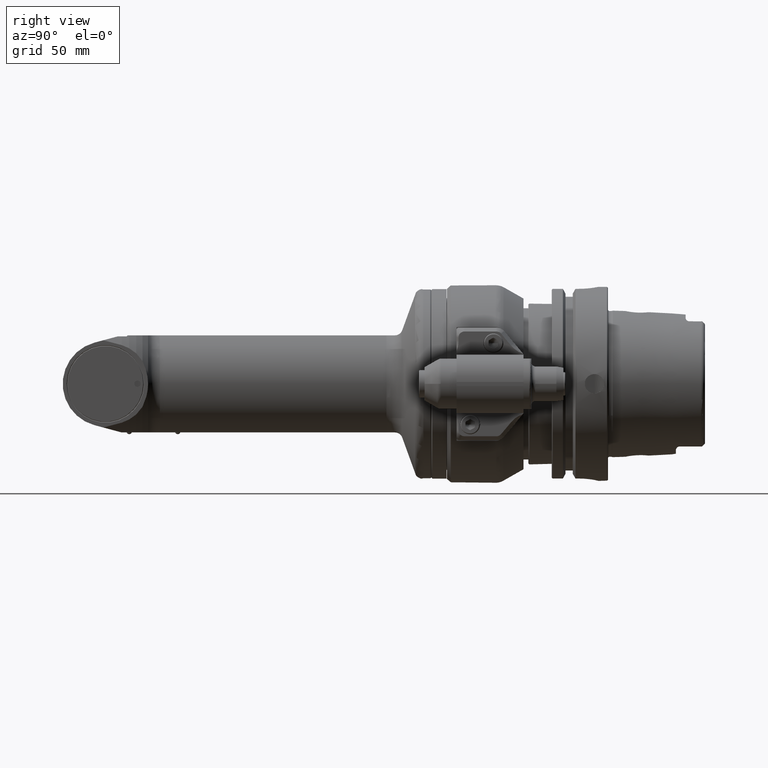
[diagram: clean part render]
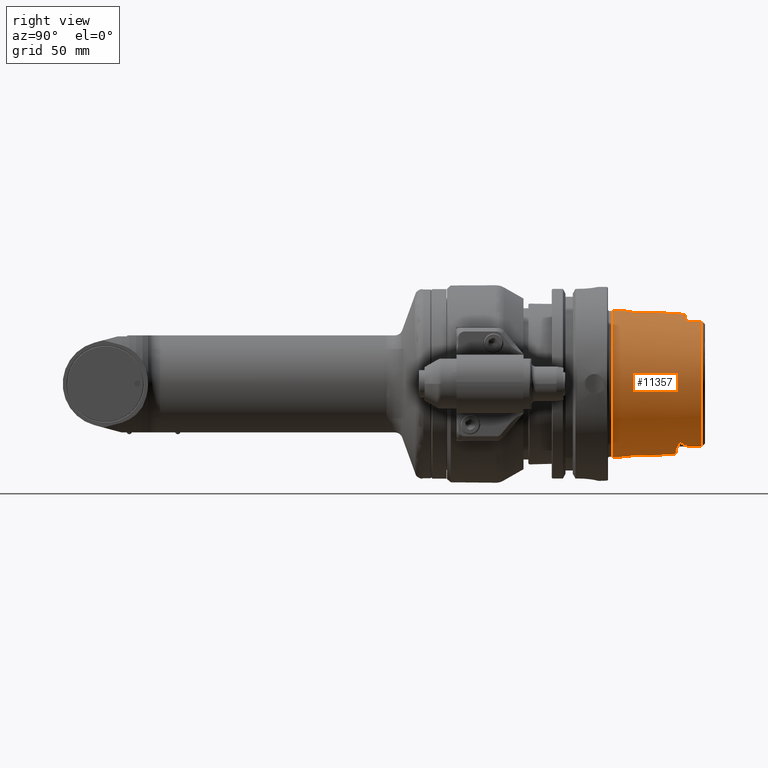
[diagram: same view with one face highlighted and labeled with its STEP entity id]
A machine part, right view. The second image highlights one B-rep face of the part: STEP entity #11357.
In plain terms, the highlighted conical surface has half-angle 2.868 deg.
Its self-contained STEP definition (entity closure, byte-faithful):
#150=B_SPLINE_CURVE_WITH_KNOTS('',3,(#60671,#60672,#60673,#60674,#60675,
#60676,#60677,#60678,#60679,#60680,#60681,#60682,#60683,#60684,#60685,#60686,
#60687,#60688),.UNSPECIFIED.,.F.,.F.,(4,2,2,2,2,2,2,2,4),(1.95351747742074,
1.96415168134067,1.9747858852606,1.99605429310045,2.07500752198644,2.15396075087244,
2.37309502710521,2.59222930333799,2.83524321414784),.UNSPECIFIED.);
#151=B_SPLINE_CURVE_WITH_KNOTS('',3,(#60694,#60695,#60696,#60697,#60698,
#60699,#60700,#60701,#60702,#60703,#60704,#60705,#60706,#60707,#60708,#60709,
#60710,#60711,#60712),.UNSPECIFIED.,.F.,.F.,(4,2,2,2,2,2,3,2,4),(0.880850159135021,
1.06197193937717,1.12429506029204,1.14773343290938,1.16113788293459,1.16784010794719,
1.1745423329598,1.1812615850908,1.18523491439442),.UNSPECIFIED.);
#152=B_SPLINE_CURVE_WITH_KNOTS('',3,(#60714,#60715,#60716,#60717,#60718,
#60719,#60720,#60721,#60722,#60723,#60724,#60725),.UNSPECIFIED.,.F.,.F.,
(4,2,2,2,2,4),(-2.21811633364772,-2.19053511535296,-2.02523452835063,-1.9375169475588,
-1.89629131750475,-1.88277978154764),.UNSPECIFIED.);
#153=B_SPLINE_CURVE_WITH_KNOTS('',3,(#60729,#60730,#60731,#60732,#60733,
#60734,#60735,#60736,#60737,#60738),.UNSPECIFIED.,.F.,.F.,(4,2,2,2,4),(-0.968342178380193,
-0.916829721728276,-0.81436746422335,-0.475336799953219,-0.355883563659341),
 .UNSPECIFIED.);
#154=B_SPLINE_CURVE_WITH_KNOTS('',3,(#60740,#60741,#60742,#60743,#60744,
#60745,#60746,#60747,#60748,#60749,#60750,#60751,#60752,#60753,#60754,#60755,
#60756,#60757),.UNSPECIFIED.,.F.,.F.,(4,2,2,2,2,2,2,2,4),(0.576465429523074,
0.580438758827661,0.587158010958199,0.593860235970344,0.60056246098249,
0.613966911006781,0.63740528362252,0.699728404533146,0.880850184762865),
 .UNSPECIFIED.);
#155=B_SPLINE_CURVE_WITH_KNOTS('',3,(#60763,#60764,#60765,#60766,#60767,
#60768,#60769,#60770,#60771,#60772,#60773,#60774,#60775,#60776,#60777,#60778,
#60779,#60780),.UNSPECIFIED.,.F.,.F.,(4,2,2,2,2,2,2,2,4),(1.0717917443354,
1.31480565516204,1.53393993138363,1.75307420760523,1.83202743648706,1.91098066536889,
1.93224907320764,1.94288327712701,1.95351748104638),.UNSPECIFIED.);
#156=B_SPLINE_CURVE_WITH_KNOTS('',3,(#60784,#60785,#60786,#60787,#60788,
#60789,#60790,#60791),.UNSPECIFIED.,.F.,.F.,(4,2,2,4),(2.25015551751675,
2.37309502814378,2.59222930392852,2.83524321428847),.UNSPECIFIED.);
#157=B_SPLINE_CURVE_WITH_KNOTS('',3,(#60793,#60794,#60795,#60796,#60797,
#60798,#60799,#60800,#60801,#60802,#60803,#60804,#60805,#60806),
 .UNSPECIFIED.,.F.,.F.,(4,2,2,2,2,2,4),(0.711766951876582,0.73217229522712,
0.759580173348406,0.791109244943153,0.847374258154563,0.994679561113807,
1.15970822158042),.UNSPECIFIED.);
#158=B_SPLINE_CURVE_WITH_KNOTS('',3,(#60810,#60811,#60812,#60813,#60814,
#60815,#60816,#60817,#60818,#60819,#60820,#60821,#60822,#60823),
 .UNSPECIFIED.,.F.,.F.,(4,2,2,2,2,2,4),(-0.929951198099741,-0.898553991922293,
-0.853770881530642,-0.802983637328384,-0.726748246761294,-0.48788984865174,
-0.375270817784569),.UNSPECIFIED.);
#159=B_SPLINE_CURVE_WITH_KNOTS('',3,(#60825,#60826,#60827,#60828,#60829,
#60830,#60831,#60832),.UNSPECIFIED.,.F.,.F.,(4,2,2,4),(1.07179174434778,
1.31480565470068,1.53393993048412,1.65687944114178),.UNSPECIFIED.);
#160=B_SPLINE_CURVE_WITH_KNOTS('',3,(#60835,#60836,#60837,#60838,#60839,
#60840,#60841,#60842,#60843,#60844,#60845,#60846,#60847,#60848,#60849,#60850,
#60851,#60852,#60853,#60854,#60855,#60856,#60857,#60858,#60859,#60860,#60861,
#60862,#60863,#60864,#60865,#60866,#60867,#60868),.UNSPECIFIED.,.T.,.F.,
(4,2,2,2,2,2,2,2,2,2,2,2,2,2,2,2,4),(-3.62526048863598,-3.4004530432976,
-3.17564559795922,-2.95051015909361,-2.72537472022801,-2.5002392813624,
-2.27510384249679,-2.05029639715841,-1.82548895182003,-1.59713724610656,
-1.36878554039308,-1.14076500815155,-0.912744475910015,-0.684723943668482,
-0.456703411426949,-0.228351705713474,0.),.UNSPECIFIED.);
#161=B_SPLINE_CURVE_WITH_KNOTS('',3,(#60871,#60872,#60873,#60874,#60875,
#60876,#60877,#60878,#60879,#60880,#60881,#60882,#60883,#60884,#60885,#60886,
#60887,#60888),.UNSPECIFIED.,.F.,.F.,(4,2,2,2,2,2,2,2,4),(-3.62042001085126,
-3.3969087829225,-3.16855707720903,-2.9405365449675,-2.71251601272596,-2.48449548048443,
-2.2564749482429,-2.02812324252942,-1.80461203294813),.UNSPECIFIED.);
#162=B_SPLINE_CURVE_WITH_KNOTS('',3,(#60889,#60890,#60891,#60892,#60893,
#60894,#60895,#60896,#60897,#60898,#60899,#60900,#60901,#60902,#60903,#60904,
#60905,#60906,#60907,#60908,#60909,#60910,#60911),.UNSPECIFIED.,.F.,.F.,
(4,2,2,2,2,2,2,2,2,3,4),(-1.80461203294813,-1.79977153681595,-1.57496409147757,
-1.35015664613919,-1.12502120727358,-0.899885768407974,-0.674750329542366,
-0.449614890676758,-0.224807445338379,0.,0.00484047778471908),
 .UNSPECIFIED.);
#345=(
BOUNDED_CURVE()
B_SPLINE_CURVE(2,(#60690,#60691,#60692),.UNSPECIFIED.,.F.,.F.)
B_SPLINE_CURVE_WITH_KNOTS((3,3),(2.97141344392928,3.96265835988855),
 .UNSPECIFIED.)
CURVE()
GEOMETRIC_REPRESENTATION_ITEM()
RATIONAL_B_SPLINE_CURVE((1.02464110441185,1.02628589834782,1.02628589827356))
REPRESENTATION_ITEM('')
);
#346=(
BOUNDED_CURVE()
B_SPLINE_CURVE(2,(#60759,#60760,#60761),.UNSPECIFIED.,.F.,.F.)
B_SPLINE_CURVE_WITH_KNOTS((3,3),(3.9626582701818,4.95390318622074),
 .UNSPECIFIED.)
CURVE()
GEOMETRIC_REPRESENTATION_ITEM()
RATIONAL_B_SPLINE_CURVE((1.02628589827313,1.02628589834766,1.02464110441169))
REPRESENTATION_ITEM('')
);
#482=CONICAL_SURFACE('',#12432,36.74017294717,0.0500570901447486);
#762=FACE_BOUND('',#2470,.T.);
#763=FACE_BOUND('',#2471,.T.);
#1174=CIRCLE('',#12430,37.88261919706);
#1175=CIRCLE('',#12431,37.88261919706);
#1176=CIRCLE('',#12433,35.59772669727);
#1177=CIRCLE('',#12434,36.25402645881);
#1178=CIRCLE('',#12435,35.59772669727);
#1179=CIRCLE('',#12436,36.00353175058);
#1180=CIRCLE('',#12437,35.59772669727);
#1764=FACE_OUTER_BOUND('',#2469,.T.);
#2469=EDGE_LOOP('',(#9961,#9962,#9963,#9964,#9965,#9966,#9967,#9968,#9969,
#9970,#9971,#9972,#9973,#9974,#9975,#9976,#9977,#9978,#9979,#9980,#9981));
#2470=EDGE_LOOP('',(#9982));
#2471=EDGE_LOOP('',(#9983,#9984));
#3353=LINE('',#60667,#4235);
#4235=VECTOR('',#15189,36.74017294717);
#5368=VERTEX_POINT('',#60660);
#5369=VERTEX_POINT('',#60661);
#5370=VERTEX_POINT('',#60666);
#5371=VERTEX_POINT('',#60668);
#5372=VERTEX_POINT('',#60670);
#5373=VERTEX_POINT('',#60689);
#5374=VERTEX_POINT('',#60693);
#5375=VERTEX_POINT('',#60713);
#5376=VERTEX_POINT('',#60726);
#5377=VERTEX_POINT('',#60728);
#5378=VERTEX_POINT('',#60739);
#5379=VERTEX_POINT('',#60758);
#5380=VERTEX_POINT('',#60762);
#5381=VERTEX_POINT('',#60781);
#5382=VERTEX_POINT('',#60783);
#5383=VERTEX_POINT('',#60792);
#5384=VERTEX_POINT('',#60807);
#5385=VERTEX_POINT('',#60809);
#5386=VERTEX_POINT('',#60824);
#5387=VERTEX_POINT('',#60834);
#5388=VERTEX_POINT('',#60869);
#5389=VERTEX_POINT('',#60870);
#6937=EDGE_CURVE('',#5368,#5369,#1174,.T.);
#6939=EDGE_CURVE('',#5369,#5368,#1175,.T.);
#6940=EDGE_CURVE('',#5368,#5370,#3353,.T.);
#6941=EDGE_CURVE('',#5371,#5370,#1176,.T.);
#6942=EDGE_CURVE('',#5372,#5371,#150,.T.);
#6943=EDGE_CURVE('',#5373,#5372,#345,.T.);
#6944=EDGE_CURVE('',#5374,#5373,#151,.T.);
#6945=EDGE_CURVE('',#5375,#5374,#152,.T.);
#6946=EDGE_CURVE('',#5376,#5375,#1177,.T.);
#6947=EDGE_CURVE('',#5377,#5376,#153,.T.);
#6948=EDGE_CURVE('',#5378,#5377,#154,.T.);
#6949=EDGE_CURVE('',#5379,#5378,#346,.T.);
#6950=EDGE_CURVE('',#5380,#5379,#155,.T.);
#6951=EDGE_CURVE('',#5381,#5380,#1178,.T.);
#6952=EDGE_CURVE('',#5382,#5381,#156,.T.);
#6953=EDGE_CURVE('',#5382,#5383,#157,.T.);
#6954=EDGE_CURVE('',#5384,#5383,#1179,.T.);
#6955=EDGE_CURVE('',#5385,#5384,#158,.T.);
#6956=EDGE_CURVE('',#5386,#5385,#159,.T.);
#6957=EDGE_CURVE('',#5370,#5386,#1180,.T.);
#6958=EDGE_CURVE('',#5387,#5387,#160,.T.);
#6959=EDGE_CURVE('',#5388,#5389,#161,.T.);
#6960=EDGE_CURVE('',#5389,#5388,#162,.T.);
#9961=ORIENTED_EDGE('',*,*,#6937,.F.);
#9962=ORIENTED_EDGE('',*,*,#6940,.T.);
#9963=ORIENTED_EDGE('',*,*,#6941,.F.);
#9964=ORIENTED_EDGE('',*,*,#6942,.F.);
#9965=ORIENTED_EDGE('',*,*,#6943,.F.);
#9966=ORIENTED_EDGE('',*,*,#6944,.F.);
#9967=ORIENTED_EDGE('',*,*,#6945,.F.);
#9968=ORIENTED_EDGE('',*,*,#6946,.F.);
#9969=ORIENTED_EDGE('',*,*,#6947,.F.);
#9970=ORIENTED_EDGE('',*,*,#6948,.F.);
#9971=ORIENTED_EDGE('',*,*,#6949,.F.);
#9972=ORIENTED_EDGE('',*,*,#6950,.F.);
#9973=ORIENTED_EDGE('',*,*,#6951,.F.);
#9974=ORIENTED_EDGE('',*,*,#6952,.F.);
#9975=ORIENTED_EDGE('',*,*,#6953,.T.);
#9976=ORIENTED_EDGE('',*,*,#6954,.F.);
#9977=ORIENTED_EDGE('',*,*,#6955,.F.);
#9978=ORIENTED_EDGE('',*,*,#6956,.F.);
#9979=ORIENTED_EDGE('',*,*,#6957,.F.);
#9980=ORIENTED_EDGE('',*,*,#6940,.F.);
#9981=ORIENTED_EDGE('',*,*,#6939,.F.);
#9982=ORIENTED_EDGE('',*,*,#6958,.T.);
#9983=ORIENTED_EDGE('',*,*,#6959,.T.);
#9984=ORIENTED_EDGE('',*,*,#6960,.T.);
#11357=ADVANCED_FACE('',(#1764,#762,#763),#482,.T.);
#12430=AXIS2_PLACEMENT_3D('',#60662,#15182,#15183);
#12431=AXIS2_PLACEMENT_3D('',#60664,#15185,#15186);
#12432=AXIS2_PLACEMENT_3D('',#60665,#15187,#15188);
#12433=AXIS2_PLACEMENT_3D('',#60669,#15190,#15191);
#12434=AXIS2_PLACEMENT_3D('',#60727,#15192,#15193);
#12435=AXIS2_PLACEMENT_3D('',#60782,#15194,#15195);
#12436=AXIS2_PLACEMENT_3D('',#60808,#15196,#15197);
#12437=AXIS2_PLACEMENT_3D('',#60833,#15198,#15199);
#15182=DIRECTION('center_axis',(0.,-1.,1.2270676010003E-16));
#15183=DIRECTION('ref_axis',(-0.901999999999984,5.2976929516558E-17,0.431736030463093));
#15185=DIRECTION('center_axis',(0.,-1.,1.2270676010003E-16));
#15186=DIRECTION('ref_axis',(-0.901999999999984,5.2976929516558E-17,0.431736030463093));
#15187=DIRECTION('center_axis',(0.,-1.,1.2270676010003E-16));
#15188=DIRECTION('ref_axis',(0.901999999999984,-5.29769295165608E-17,-0.431736030463092));
#15189=DIRECTION('',(0.045132641563491,0.998747405449354,-0.0216024251806382));
#15190=DIRECTION('center_axis',(0.,1.,-1.2270676010003E-16));
#15191=DIRECTION('ref_axis',(-0.423589941730021,-1.11154415691394E-16,-0.905854050752745));
#15192=DIRECTION('center_axis',(0.,1.,-1.2270676010003E-16));
#15193=DIRECTION('ref_axis',(0.352841176761012,-1.14814657441685E-16,-0.935683228438933));
#15194=DIRECTION('center_axis',(0.,1.,-1.2270676010003E-16));
#15195=DIRECTION('ref_axis',(0.423589941729375,1.11154415691451E-16,0.905854050753047));
#15196=DIRECTION('center_axis',(0.,1.,-1.2270676010003E-16));
#15197=DIRECTION('ref_axis',(-0.345044748677395,1.15170876028783E-16,0.938586235468086));
#15198=DIRECTION('center_axis',(0.,1.,-1.2270676010003E-16));
#15199=DIRECTION('ref_axis',(-0.423589941730021,-1.11154415691394E-16,-0.905854050752745));
#60660=CARTESIAN_POINT('',(-34.1701225157541,85.4924722021158,16.355291635688));
#60661=CARTESIAN_POINT('',(34.1701225157455,85.4924722021194,-16.3552916356846));
#60662=CARTESIAN_POINT('Origin',(-4.060069640028E-12,85.49247220212,-3.05827066001153E-16));
#60664=CARTESIAN_POINT('Origin',(-4.060069640028E-12,85.49247220212,-3.05827066001153E-16));
#60665=CARTESIAN_POINT('Origin',(-4.060069640028E-12,108.29627228904,-3.10400748128979E-15));
#60666=CARTESIAN_POINT('',(-32.1091494809456,131.100072375972,15.3688212177916));
#60667=CARTESIAN_POINT('',(-33.1396359983508,108.29627228904,15.8620564267387));
#60668=CARTESIAN_POINT('',(-15.0788389774241,131.100072375969,-32.2463449263182));
#60669=CARTESIAN_POINT('Origin',(-4.04773852177651E-12,131.10007237597,
-5.90218791012513E-15));
#60670=CARTESIAN_POINT('',(-17.2220784314341,122.309422442259,-31.6567015512251));
#60671=CARTESIAN_POINT('Ctrl Pts',(-17.2220784153372,122.309422442311,-31.6567015599883));
#60672=CARTESIAN_POINT('Ctrl Pts',(-17.1909406705659,122.309422440013,-31.6736413124103));
#60673=CARTESIAN_POINT('Ctrl Pts',(-17.1602817479295,122.316165079955,-31.6898757871768));
#60674=CARTESIAN_POINT('Ctrl Pts',(-17.1010841481202,122.340529544632,-31.7204736705879));
#60675=CARTESIAN_POINT('Ctrl Pts',(-17.0725575989163,122.358192511476,-31.7348277686473));
#60676=CARTESIAN_POINT('Ctrl Pts',(-16.9913409982195,122.421686058809,-31.7748237733014));
#60677=CARTESIAN_POINT('Ctrl Pts',(-16.943119847744,122.478559894859,-31.7973063151057));
#60678=CARTESIAN_POINT('Ctrl Pts',(-16.7539351570489,122.740236803165,-31.8829715413045));
#60679=CARTESIAN_POINT('Ctrl Pts',(-16.6480990474377,122.999440628543,-31.9234627110339));
#60680=CARTESIAN_POINT('Ctrl Pts',(-16.4551734621441,123.532137453558,-31.9933264788));
#60681=CARTESIAN_POINT('Ctrl Pts',(-16.3734687541302,123.807964404626,-32.019615695522));
#60682=CARTESIAN_POINT('Ctrl Pts',(-16.1127586050632,124.76352042181,-32.0985687614792));
#60683=CARTESIAN_POINT('Ctrl Pts',(-15.9615734496456,125.490974546385,-32.1330159836246));
#60684=CARTESIAN_POINT('Ctrl Pts',(-15.682637857892,126.976696146467,-32.1872927901172));
#60685=CARTESIAN_POINT('Ctrl Pts',(-15.5577250750558,127.735552357204,-32.2055397465087));
#60686=CARTESIAN_POINT('Ctrl Pts',(-15.3110707220721,129.359161243694,-32.2335467174601));
#60687=CARTESIAN_POINT('Ctrl Pts',(-15.1915252095644,130.226206429029,-32.2419810937322));
#60688=CARTESIAN_POINT('Ctrl Pts',(-15.0788389774374,131.10007237597,-32.2463449263096));
#60689=CARTESIAN_POINT('',(-19.7607926843341,120.000000000089,-30.2755742002442));
#60690=CARTESIAN_POINT('Ctrl Pts',(-19.760792684367,120.000000000118,-30.2755742002257));
#60691=CARTESIAN_POINT('Ctrl Pts',(-18.4894012019291,122.309422546289,-30.9672446189069));
#60692=CARTESIAN_POINT('Ctrl Pts',(-17.2220784313653,122.309422442182,-31.6567015512759));
#60693=CARTESIAN_POINT('',(-17.2958116191341,119.229703254579,-31.792233940204));
#60694=CARTESIAN_POINT('Ctrl Pts',(-17.2958117319328,119.229703254563,-31.7922338788359));
#60695=CARTESIAN_POINT('Ctrl Pts',(-17.8261498365252,119.229703248731,-31.5037159987098));
#60696=CARTESIAN_POINT('Ctrl Pts',(-18.4507527759537,119.273514318881,-31.1392529649616));
#60697=CARTESIAN_POINT('Ctrl Pts',(-19.1249903159267,119.429572390918,-30.7155145694505));
#60698=CARTESIAN_POINT('Ctrl Pts',(-19.3283468362131,119.489438730329,-30.5843319325354));
#60699=CARTESIAN_POINT('Ctrl Pts',(-19.5479485937452,119.598596989926,-30.4374233452039));
#60700=CARTESIAN_POINT('Ctrl Pts',(-19.6175869794749,119.639846459348,-30.39010851942));
#60701=CARTESIAN_POINT('Ctrl Pts',(-19.7001264343484,119.71014442129,-30.3324232998638));
#60702=CARTESIAN_POINT('Ctrl Pts',(-19.7308081134273,119.741559546607,-30.3105871269043));
#60703=CARTESIAN_POINT('Ctrl Pts',(-19.7647782233519,119.796112903471,-30.2851739589189));
#60704=CARTESIAN_POINT('Ctrl Pts',(-19.7741376000108,119.815516113189,-30.2779004366636));
#60705=CARTESIAN_POINT('Ctrl Pts',(-19.7867895923066,119.856434014018,-30.2671847325074));
#60706=CARTESIAN_POINT('Ctrl Pts',(-19.7900983204068,119.87794119344,-30.2637329007029));
#60707=CARTESIAN_POINT('Ctrl Pts',(-19.7894865307163,119.900253958639,-30.2627973298188));
#60708=CARTESIAN_POINT('Ctrl Pts',(-19.7888731867636,119.922623409803,-30.2618593821006));
#60709=CARTESIAN_POINT('Ctrl Pts',(-19.7843672324716,119.944184953197,-30.2635160267487));
#60710=CARTESIAN_POINT('Ctrl Pts',(-19.7724984310362,119.976848285303,-30.2693164621919));
#60711=CARTESIAN_POINT('Ctrl Pts',(-19.7670550943,119.988624628288,-30.2721672844563));
#60712=CARTESIAN_POINT('Ctrl Pts',(-19.7607926843164,120.000000000074,-30.2755742002614));
#60713=CARTESIAN_POINT('',(-12.7919133580441,117.999999999998,-33.9222845209035));
#60714=CARTESIAN_POINT('Ctrl Pts',(-12.7919133580431,118.,-33.922284520901));
#60715=CARTESIAN_POINT('Ctrl Pts',(-12.9462563527709,118.,-33.8640825971844));
#60716=CARTESIAN_POINT('Ctrl Pts',(-13.1078601684653,118.00788237048,-33.8015214636964));
#60717=CARTESIAN_POINT('Ctrl Pts',(-14.2887001222671,118.126826413066,-33.3303756139555));
#60718=CARTESIAN_POINT('Ctrl Pts',(-15.1856660504596,118.517364328609,-32.9013763546066));
#60719=CARTESIAN_POINT('Ctrl Pts',(-16.2665692971439,118.979220737936,-32.3477305475557));
#60720=CARTESIAN_POINT('Ctrl Pts',(-16.5464918144985,119.093921469171,-32.1975783895266));
#60721=CARTESIAN_POINT('Ctrl Pts',(-16.9276609812447,119.193538066503,-31.9921216718047));
#60722=CARTESIAN_POINT('Ctrl Pts',(-17.0495968556438,119.216190012626,-31.9260329377716));
#60723=CARTESIAN_POINT('Ctrl Pts',(-17.2149616884379,119.228227541059,-31.8362033218791));
#60724=CARTESIAN_POINT('Ctrl Pts',(-17.2554367563616,119.229703255021,-31.8141989276617));
#60725=CARTESIAN_POINT('Ctrl Pts',(-17.2958116191327,119.229703254577,-31.7922339402014));
#60726=CARTESIAN_POINT('',(12.7919133580459,117.999999999988,-33.9222845208935));
#60727=CARTESIAN_POINT('Origin',(-4.060069640028E-12,118.,-4.29472047619454E-15));
#60728=CARTESIAN_POINT('',(17.2958116191559,119.229703254579,-31.792233940194));
#60729=CARTESIAN_POINT('Ctrl Pts',(17.295811619151,119.229703254615,-31.7922339401848));
#60730=CARTESIAN_POINT('Ctrl Pts',(17.2061086581328,119.229703255601,-31.8410347107309));
#60731=CARTESIAN_POINT('Ctrl Pts',(17.1184606066973,119.222421721539,-31.8886491594871));
#60732=CARTESIAN_POINT('Ctrl Pts',(16.8557389483145,119.181972694756,-32.0310465175738));
#60733=CARTESIAN_POINT('Ctrl Pts',(16.6786340103077,119.130256357617,-32.1266727712629));
#60734=CARTESIAN_POINT('Ctrl Pts',(15.844758539429,118.827193141583,-32.5702452190954));
#60735=CARTESIAN_POINT('Ctrl Pts',(15.0274939144756,118.393492827711,-32.9882754200444));
#60736=CARTESIAN_POINT('Ctrl Pts',(13.7106306084529,118.076543459956,-33.5594226413758));
#60737=CARTESIAN_POINT('Ctrl Pts',(13.271713052681,117.99999999999,-33.7413546038922));
#60738=CARTESIAN_POINT('Ctrl Pts',(12.7919133580472,117.999999999991,-33.9222845208968));
#60739=CARTESIAN_POINT('',(19.7607926841759,120.000000000079,-30.2755742003442));
#60740=CARTESIAN_POINT('Ctrl Pts',(19.7607926841618,120.000000000068,-30.2755742003574));
#60741=CARTESIAN_POINT('Ctrl Pts',(19.7670550941475,119.988624628279,-30.2721672845511));
#60742=CARTESIAN_POINT('Ctrl Pts',(19.7724984308854,119.976848285291,-30.2693164622859));
#60743=CARTESIAN_POINT('Ctrl Pts',(19.7843672323216,119.944184953183,-30.2635160268423));
#60744=CARTESIAN_POINT('Ctrl Pts',(19.7888731866133,119.92262340979,-30.2618593821944));
#60745=CARTESIAN_POINT('Ctrl Pts',(19.7900983202564,119.87794119343,-30.2637329007966));
#60746=CARTESIAN_POINT('Ctrl Pts',(19.7867895921564,119.856434014009,-30.2671847326008));
#60747=CARTESIAN_POINT('Ctrl Pts',(19.7741375998613,119.815516113182,-30.2779004367564));
#60748=CARTESIAN_POINT('Ctrl Pts',(19.7647782232029,119.796112903465,-30.2851739590112));
#60749=CARTESIAN_POINT('Ctrl Pts',(19.7308081132802,119.741559546605,-30.3105871269949));
#60750=CARTESIAN_POINT('Ctrl Pts',(19.700126434203,119.71014442129,-30.332423299953));
#60751=CARTESIAN_POINT('Ctrl Pts',(19.617586979334,119.639846459351,-30.3901085195054));
#60752=CARTESIAN_POINT('Ctrl Pts',(19.5479485936082,119.598596989932,-30.4374233452863));
#60753=CARTESIAN_POINT('Ctrl Pts',(19.3283468360883,119.489438730342,-30.5843319326083));
#60754=CARTESIAN_POINT('Ctrl Pts',(19.1249903158133,119.429572390934,-30.715514569515));
#60755=CARTESIAN_POINT('Ctrl Pts',(18.4507527758785,119.273514318906,-31.1392529649993));
#60756=CARTESIAN_POINT('Ctrl Pts',(17.8261498353228,119.229703254591,-31.5037159965867));
#60757=CARTESIAN_POINT('Ctrl Pts',(17.2958117319249,119.229703254591,-31.7922338788342));
#60758=CARTESIAN_POINT('',(17.2220784310259,122.309422441989,-31.6567015514451));
#60759=CARTESIAN_POINT('Ctrl Pts',(17.2220784309622,122.30942244181,-31.656701551512));
#60760=CARTESIAN_POINT('Ctrl Pts',(18.4894012016372,122.309422546284,-30.9672446190825));
#60761=CARTESIAN_POINT('Ctrl Pts',(19.7607926841856,120.000000000091,-30.2755742003404));
#60762=CARTESIAN_POINT('',(15.0788389774159,131.100072375969,-32.2463449263182));
#60763=CARTESIAN_POINT('Ctrl Pts',(15.0788389774255,131.10007237597,-32.2463449263114));
#60764=CARTESIAN_POINT('Ctrl Pts',(15.1915252095644,130.226206428918,-32.2419810937346));
#60765=CARTESIAN_POINT('Ctrl Pts',(15.3110707220854,129.359161243472,-32.2335467174623));
#60766=CARTESIAN_POINT('Ctrl Pts',(15.5577250750851,127.735552356871,-32.2055397465092));
#60767=CARTESIAN_POINT('Ctrl Pts',(15.6826378579215,126.976696146129,-32.1872927901176));
#60768=CARTESIAN_POINT('Ctrl Pts',(15.9615734496757,125.49097454604,-32.1330159836249));
#60769=CARTESIAN_POINT('Ctrl Pts',(16.1127586050939,124.763520421461,-32.0985687614793));
#60770=CARTESIAN_POINT('Ctrl Pts',(16.3734687541618,123.807964404272,-32.0196156955215));
#60771=CARTESIAN_POINT('Ctrl Pts',(16.455173462176,123.532137453203,-31.9933264787994));
#60772=CARTESIAN_POINT('Ctrl Pts',(16.6480990474702,122.999440628187,-31.9234627110328));
#60773=CARTESIAN_POINT('Ctrl Pts',(16.7539351570817,122.740236802808,-31.8829715413032));
#60774=CARTESIAN_POINT('Ctrl Pts',(16.9431198477778,122.478559894501,-31.7973063151037));
#60775=CARTESIAN_POINT('Ctrl Pts',(16.9913409982536,122.421686058451,-31.7748237732992));
#60776=CARTESIAN_POINT('Ctrl Pts',(17.0725575989509,122.358192511118,-31.7348277686447));
#60777=CARTESIAN_POINT('Ctrl Pts',(17.1010841481549,122.340529544275,-31.7204736705851));
#60778=CARTESIAN_POINT('Ctrl Pts',(17.1602817479645,122.316165079598,-31.6898757871738));
#60779=CARTESIAN_POINT('Ctrl Pts',(17.1909406705374,122.309422441953,-31.6736413122903));
#60780=CARTESIAN_POINT('Ctrl Pts',(17.2220784153724,122.309422441954,-31.656701559985));
#60781=CARTESIAN_POINT('',(15.0788389774059,131.100072375741,32.2463449263418));
#60782=CARTESIAN_POINT('Origin',(-4.04773852177651E-12,131.10007237597,
-5.90218791012513E-15));
#60783=CARTESIAN_POINT('',(16.0738114170159,124.999999999981,32.104236002674));
#60784=CARTESIAN_POINT('Ctrl Pts',(16.0738114170184,124.999999999982,32.1042360026792));
#60785=CARTESIAN_POINT('Ctrl Pts',(15.9831851934085,125.40538976505,32.1268973905207));
#60786=CARTESIAN_POINT('Ctrl Pts',(15.9003503852971,125.817072870104,32.1449291009408));
#60787=CARTESIAN_POINT('Ctrl Pts',(15.6826378579059,126.976696145585,32.1872927901556));
#60788=CARTESIAN_POINT('Ctrl Pts',(15.5577250750672,127.735552356349,32.2055397465469));
#60789=CARTESIAN_POINT('Ctrl Pts',(15.3110707220534,129.35916124306,32.2335467175004));
#60790=CARTESIAN_POINT('Ctrl Pts',(15.191525209522,130.226206428595,32.2419810937725));
#60791=CARTESIAN_POINT('Ctrl Pts',(15.0788389773738,131.100072375737,32.2463449263484));
#60792=CARTESIAN_POINT('',(12.4228295644059,122.999999999992,33.7924193293147));
#60793=CARTESIAN_POINT('Ctrl Pts',(16.0738114170158,124.999999999981,32.1042360026806));
#60794=CARTESIAN_POINT('Ctrl Pts',(16.0827312175113,124.96009989509,32.1020055769781));
#60795=CARTESIAN_POINT('Ctrl Pts',(16.0870940726199,124.919061705604,32.1021180063972));
#60796=CARTESIAN_POINT('Ctrl Pts',(16.0839989881563,124.819541596349,32.1092454079948));
#60797=CARTESIAN_POINT('Ctrl Pts',(16.072034440001,124.764106689047,32.11834997361));
#60798=CARTESIAN_POINT('Ctrl Pts',(16.0290258082421,124.64812853062,32.1463311246156));
#60799=CARTESIAN_POINT('Ctrl Pts',(15.9924646289958,124.579762532288,32.1684158692367));
#60800=CARTESIAN_POINT('Ctrl Pts',(15.8335675482527,124.365647999464,32.2590183941683));
#60801=CARTESIAN_POINT('Ctrl Pts',(15.6937776253042,124.239181946133,32.3343378896113));
#60802=CARTESIAN_POINT('Ctrl Pts',(15.285621093207,123.905716997182,32.5491942433267));
#60803=CARTESIAN_POINT('Ctrl Pts',(14.8464261333401,123.630467395445,32.7703166106151));
#60804=CARTESIAN_POINT('Ctrl Pts',(13.7398962869335,123.16245530691,33.2760671292929));
#60805=CARTESIAN_POINT('Ctrl Pts',(13.0891858728803,123.000000000003,33.5474522327443));
#60806=CARTESIAN_POINT('Ctrl Pts',(12.4228295644075,123.,33.7924193293188));
#60807=CARTESIAN_POINT('',(-12.4228295643841,123.000000000002,33.7924193293247));
#60808=CARTESIAN_POINT('Origin',(-4.0498150872655E-12,123.,-4.90825427470424E-15));
#60809=CARTESIAN_POINT('',(-16.0738114170541,125.000000000001,32.104236002664));
#60810=CARTESIAN_POINT('Ctrl Pts',(-16.073811417059,125.000000000003,32.1042360026618));
#60811=CARTESIAN_POINT('Ctrl Pts',(-16.0837119187055,124.955713016872,32.1017603493827));
#60812=CARTESIAN_POINT('Ctrl Pts',(-16.0878449887303,124.910677567991,32.1022116821973));
#60813=CARTESIAN_POINT('Ctrl Pts',(-16.0815361027193,124.798635791242,32.1116506903077));
#60814=CARTESIAN_POINT('Ctrl Pts',(-16.064379243458,124.736037021965,32.1237574005346));
#60815=CARTESIAN_POINT('Ctrl Pts',(-16.009233616648,124.609439699166,32.1583644916647));
#60816=CARTESIAN_POINT('Ctrl Pts',(-15.9633700088968,124.533791244105,32.185471495734));
#60817=CARTESIAN_POINT('Ctrl Pts',(-15.7849188457532,124.318351865172,32.2855092338161));
#60818=CARTESIAN_POINT('Ctrl Pts',(-15.6445379523189,124.195106363047,32.3607302130264));
#60819=CARTESIAN_POINT('Ctrl Pts',(-15.1023350317036,123.773752731183,32.643507988288));
#60820=CARTESIAN_POINT('Ctrl Pts',(-14.4191477338859,123.379875870544,32.9810214495384));
#60821=CARTESIAN_POINT('Ctrl Pts',(-13.2256793302848,123.059942340653,33.4856959053612));
#60822=CARTESIAN_POINT('Ctrl Pts',(-12.8260801510063,123.,33.6441756282647));
#60823=CARTESIAN_POINT('Ctrl Pts',(-12.4228295643859,122.999999999999,33.7924193293298));
#60824=CARTESIAN_POINT('',(-15.0788389773541,131.100072375971,32.2463449263418));
#60825=CARTESIAN_POINT('Ctrl Pts',(-15.0788389773554,131.100072375972,32.2463449263479));
#60826=CARTESIAN_POINT('Ctrl Pts',(-15.1915252095013,130.226206428855,32.2419810937717));
#60827=CARTESIAN_POINT('Ctrl Pts',(-15.3110707220299,129.359161243345,32.2335467174996));
#60828=CARTESIAN_POINT('Ctrl Pts',(-15.5577250750402,127.735552356664,32.2055397465463));
#60829=CARTESIAN_POINT('Ctrl Pts',(-15.6826378578787,126.976696145904,32.187292790155));
#60830=CARTESIAN_POINT('Ctrl Pts',(-15.9003503852892,125.817072870324,32.1449291009364));
#60831=CARTESIAN_POINT('Ctrl Pts',(-15.9831851934225,125.405389765169,32.1268973905112));
#60832=CARTESIAN_POINT('Ctrl Pts',(-16.0738114170593,125.000000000003,32.1042360026617));
#60833=CARTESIAN_POINT('Origin',(-4.04773852177651E-12,131.10007237597,
-5.90218791012513E-15));
#60834=CARTESIAN_POINT('',(5.99998877505505,98.0000001634272,36.7696907674567));
#60835=CARTESIAN_POINT('Ctrl Pts',(-5.99980470310251,98.0484099646541,36.7672621583658));
#60836=CARTESIAN_POINT('Ctrl Pts',(-5.99376601288193,98.7968294738454,36.7302566027818));
#60837=CARTESIAN_POINT('Ctrl Pts',(-5.83863229740389,99.5947887680376,36.7160376066793));
#60838=CARTESIAN_POINT('Ctrl Pts',(-5.22123197919134,101.061325726204,36.73470261032));
#60839=CARTESIAN_POINT('Ctrl Pts',(-4.75898873129066,101.729930158619,36.7662312838117));
#60840=CARTESIAN_POINT('Ctrl Pts',(-3.69589739220896,102.785638045067,36.8351264327473));
#60841=CARTESIAN_POINT('Ctrl Pts',(-3.02341326457652,103.243409985977,36.8769209204506));
#60842=CARTESIAN_POINT('Ctrl Pts',(-1.55072413050941,103.850609443021,36.937701975756));
#60843=CARTESIAN_POINT('Ctrl Pts',(-0.75045146288942,104.000000000001,36.9554116418801));
#60844=CARTESIAN_POINT('Ctrl Pts',(0.750451462881301,104.000000000001,36.9554116418801));
#60845=CARTESIAN_POINT('Ctrl Pts',(1.55072413050129,103.850609443021,36.937701975756));
#60846=CARTESIAN_POINT('Ctrl Pts',(3.0234132645684,103.243409985977,36.8769209204506));
#60847=CARTESIAN_POINT('Ctrl Pts',(3.69589739220084,102.785638045067,36.8351264327473));
#60848=CARTESIAN_POINT('Ctrl Pts',(4.75898873128255,101.729930158619,36.7662312838117));
#60849=CARTESIAN_POINT('Ctrl Pts',(5.22123197918322,101.061325726204,36.73470261032));
#60850=CARTESIAN_POINT('Ctrl Pts',(5.83863229739577,99.5947887680376,36.7160376066793));
#60851=CARTESIAN_POINT('Ctrl Pts',(5.99376601287381,98.7968294738454,36.7302566027818));
#60852=CARTESIAN_POINT('Ctrl Pts',(6.00593859785961,97.2881910526166,36.8048511346817));
#60853=CARTESIAN_POINT('Ctrl Pts',(5.85928385967152,96.4785917555153,36.8708767598658));
#60854=CARTESIAN_POINT('Ctrl Pts',(5.25235338608637,94.990236462429,37.0375277265104));
#60855=CARTESIAN_POINT('Ctrl Pts',(4.79218191278853,94.3112831208856,37.136767339581));
#60856=CARTESIAN_POINT('Ctrl Pts',(3.72803392132978,93.2385143169141,37.3126357459111));
#60857=CARTESIAN_POINT('Ctrl Pts',(3.05289373425717,92.7725511517208,37.4008862632968));
#60858=CARTESIAN_POINT('Ctrl Pts',(1.56898843440196,92.1532353223022,37.5235103898561));
#60859=CARTESIAN_POINT('Ctrl Pts',(0.760068440801051,92.0000000000005,37.5565989416493));
#60860=CARTESIAN_POINT('Ctrl Pts',(-0.760068440809171,92.0000000000005,
37.5565989416493));
#60861=CARTESIAN_POINT('Ctrl Pts',(-1.56898843441009,92.1532353223022,37.5235103898561));
#60862=CARTESIAN_POINT('Ctrl Pts',(-3.0528937342653,92.7725511517208,37.4008862632968));
#60863=CARTESIAN_POINT('Ctrl Pts',(-3.7280339213379,93.2385143169141,37.3126357459111));
#60864=CARTESIAN_POINT('Ctrl Pts',(-4.79218191279665,94.3112831208856,37.136767339581));
#60865=CARTESIAN_POINT('Ctrl Pts',(-5.25235338609449,94.990236462429,37.0375277265104));
#60866=CARTESIAN_POINT('Ctrl Pts',(-5.85928385967964,96.4785917555153,36.8708767598657));
#60867=CARTESIAN_POINT('Ctrl Pts',(-6.00593859786773,97.2881910526166,36.8048511346817));
#60868=CARTESIAN_POINT('Ctrl Pts',(-5.99980470310251,98.0484099646541,36.7672621583658));
#60869=CARTESIAN_POINT('',(-6.00000000000406,98.0000001837391,-36.7696876464039));
#60870=CARTESIAN_POINT('',(5.99999999999594,98.0000000000005,-36.7696876557307));
#60871=CARTESIAN_POINT('Ctrl Pts',(-6.00000000000406,98.0000001837391,-36.7696876464039));
#60872=CARTESIAN_POINT('Ctrl Pts',(-6.00000002285219,97.2538925362074,-36.8075612252937));
#60873=CARTESIAN_POINT('Ctrl Pts',(-5.85285116528596,96.4628170742853,-36.8726430490628));
#60874=CARTESIAN_POINT('Ctrl Pts',(-5.25235338609449,94.990236462429,-37.0375277265104));
#60875=CARTESIAN_POINT('Ctrl Pts',(-4.79218191279665,94.3112831208856,-37.136767339581));
#60876=CARTESIAN_POINT('Ctrl Pts',(-3.7280339213379,93.2385143169141,-37.3126357459111));
#60877=CARTESIAN_POINT('Ctrl Pts',(-3.05289373426529,92.7725511517208,-37.4008862632968));
#60878=CARTESIAN_POINT('Ctrl Pts',(-1.56898843441007,92.1532353223022,-37.5235103898561));
#60879=CARTESIAN_POINT('Ctrl Pts',(-0.760068440809172,92.0000000000005,
-37.5565989416493));
#60880=CARTESIAN_POINT('Ctrl Pts',(0.760068440801051,92.0000000000005,-37.5565989416493));
#60881=CARTESIAN_POINT('Ctrl Pts',(1.56898843440196,92.1532353223022,-37.5235103898561));
#60882=CARTESIAN_POINT('Ctrl Pts',(3.05289373425717,92.7725511517208,-37.4008862632968));
#60883=CARTESIAN_POINT('Ctrl Pts',(3.72803392132978,93.2385143169141,-37.3126357459111));
#60884=CARTESIAN_POINT('Ctrl Pts',(4.79218191278853,94.3112831208856,-37.136767339581));
#60885=CARTESIAN_POINT('Ctrl Pts',(5.25235338608637,94.990236462429,-37.0375277265104));
#60886=CARTESIAN_POINT('Ctrl Pts',(5.85285114089521,96.4628170144925,-36.8726430557578));
#60887=CARTESIAN_POINT('Ctrl Pts',(5.99999999999594,97.2538924063025,-36.807561235616));
#60888=CARTESIAN_POINT('Ctrl Pts',(5.99999999999594,98.0000000000006,-36.7696876557307));
#60889=CARTESIAN_POINT('Ctrl Pts',(5.99999999999594,98.0000000000006,-36.7696876557307));
#60890=CARTESIAN_POINT('Ctrl Pts',(5.99999999999594,98.0161581646324,-36.7688674422064));
#60891=CARTESIAN_POINT('Ctrl Pts',(5.99993472662013,98.0322951881438,-36.7680589524773));
#60892=CARTESIAN_POINT('Ctrl Pts',(5.99376601287381,98.7968294738454,-36.7302566027818));
#60893=CARTESIAN_POINT('Ctrl Pts',(5.83863229739577,99.5947887680376,-36.7160376066793));
#60894=CARTESIAN_POINT('Ctrl Pts',(5.22123197918322,101.061325726204,-36.73470261032));
#60895=CARTESIAN_POINT('Ctrl Pts',(4.75898873128255,101.729930158619,-36.7662312838117));
#60896=CARTESIAN_POINT('Ctrl Pts',(3.69589739220084,102.785638045067,-36.8351264327473));
#60897=CARTESIAN_POINT('Ctrl Pts',(3.0234132645684,103.243409985977,-36.8769209204506));
#60898=CARTESIAN_POINT('Ctrl Pts',(1.55072413050129,103.850609443021,-36.937701975756));
#60899=CARTESIAN_POINT('Ctrl Pts',(0.750451462881301,104.000000000001,-36.9554116418801));
#60900=CARTESIAN_POINT('Ctrl Pts',(-0.750451462889419,104.000000000001,
-36.9554116418801));
#60901=CARTESIAN_POINT('Ctrl Pts',(-1.5507241305094,103.850609443021,-36.937701975756));
#60902=CARTESIAN_POINT('Ctrl Pts',(-3.02341326457652,103.243409985977,-36.8769209204506));
#60903=CARTESIAN_POINT('Ctrl Pts',(-3.69589739220896,102.785638045067,-36.8351264327473));
#60904=CARTESIAN_POINT('Ctrl Pts',(-4.75898873129066,101.729930158619,-36.7662312838117));
#60905=CARTESIAN_POINT('Ctrl Pts',(-5.22123197919134,101.061325726204,-36.73470261032));
#60906=CARTESIAN_POINT('Ctrl Pts',(-5.83863229740389,99.5947887680376,-36.7160376066793));
#60907=CARTESIAN_POINT('Ctrl Pts',(-5.99376601288193,98.7968294738454,-36.7302566027818));
#60908=CARTESIAN_POINT('Ctrl Pts',(-5.99980470310251,98.0484099646541,-36.7672621583658));
#60909=CARTESIAN_POINT('Ctrl Pts',(-5.99993472613541,98.0322952492254,-36.7680589494571));
#60910=CARTESIAN_POINT('Ctrl Pts',(-5.99999999950925,98.0161582869644,-36.7688674360774));
#60911=CARTESIAN_POINT('Ctrl Pts',(-6.00000000000406,98.0000001837391,-36.7696876464039));